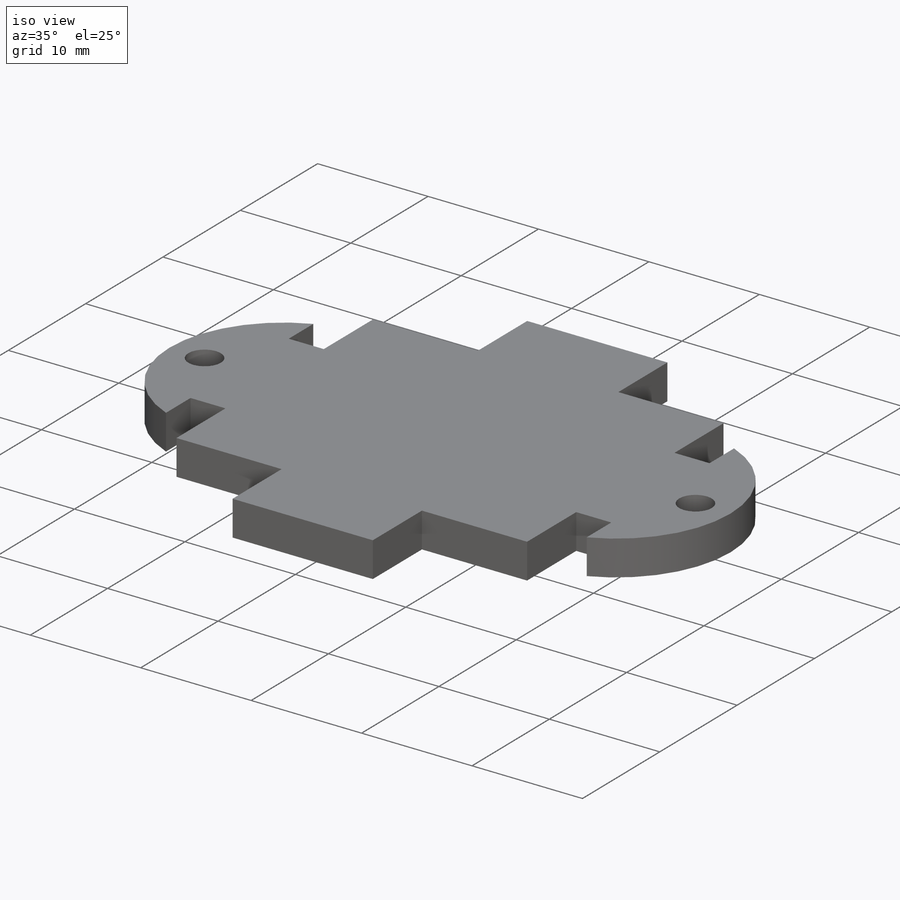
[diagram: iso view]
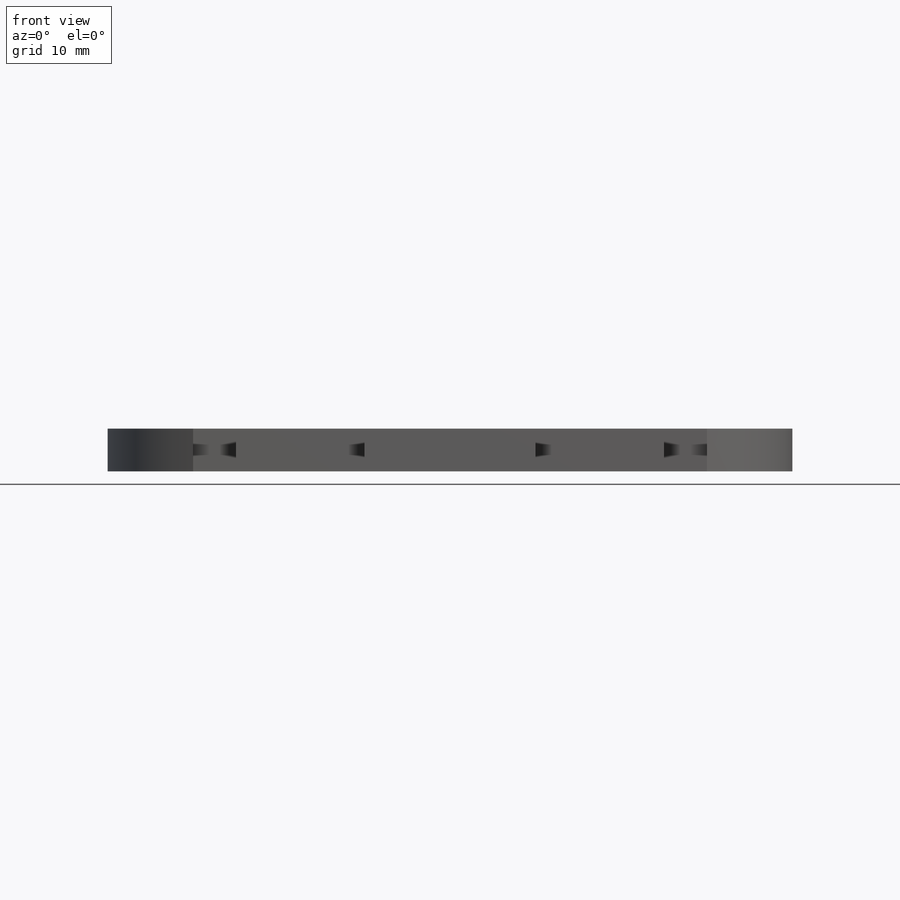
[diagram: front view]
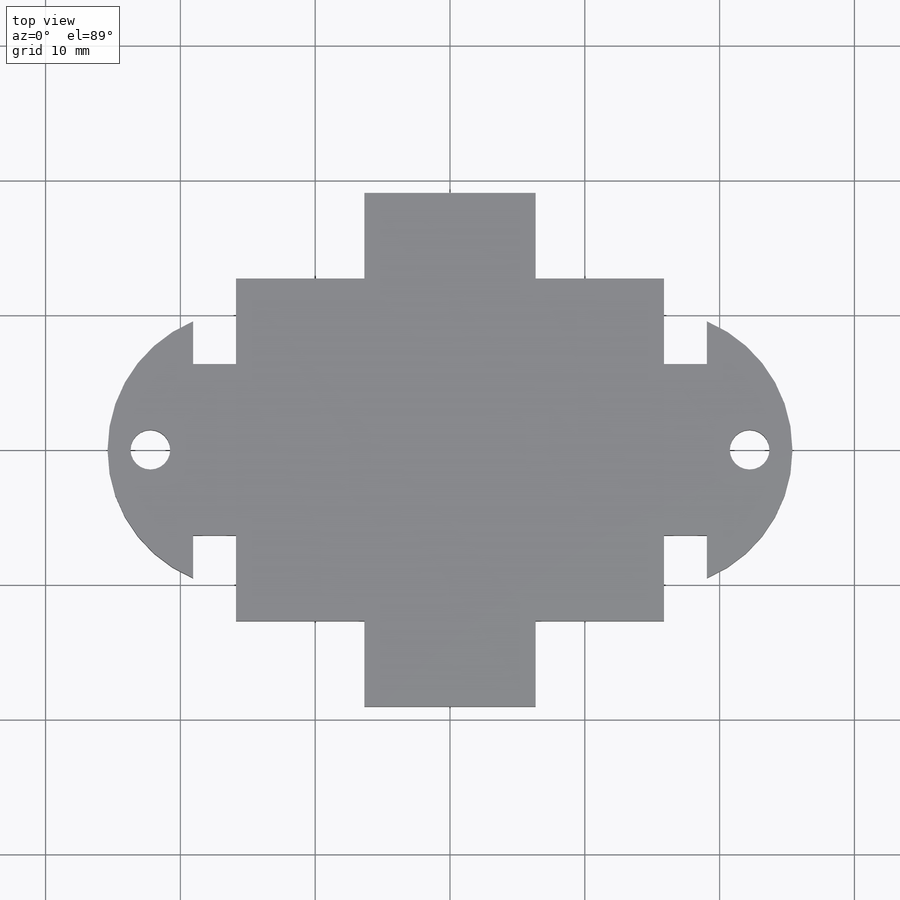
[diagram: top view]
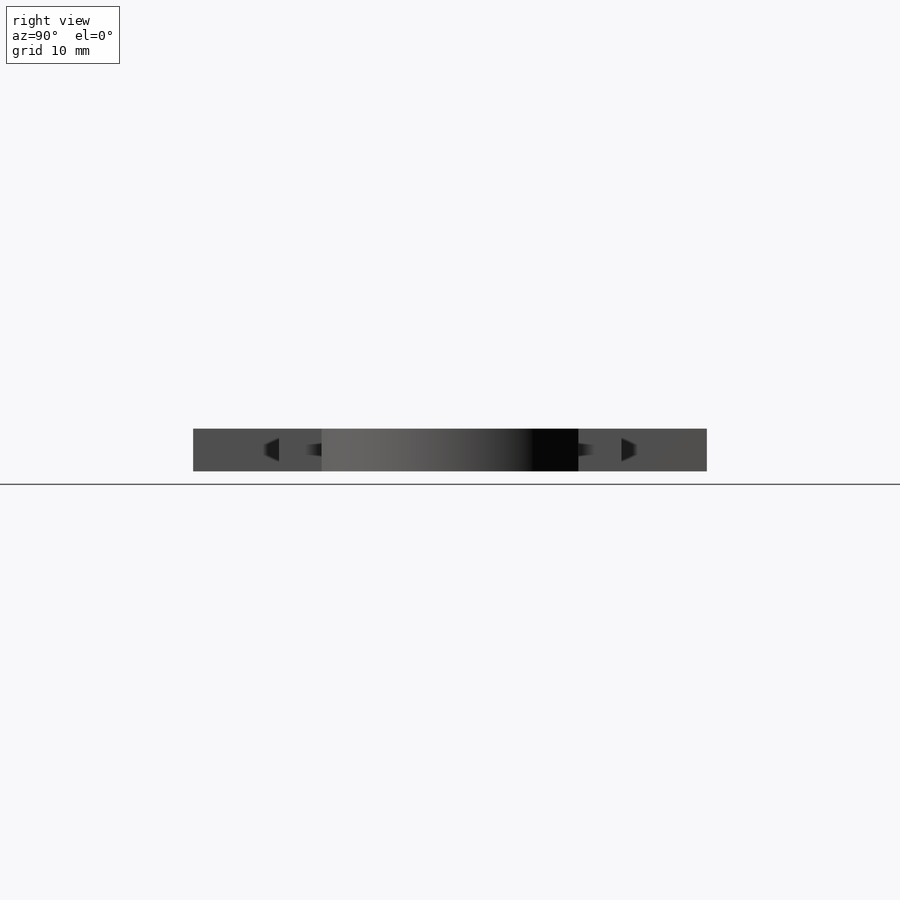
[diagram: right view]
SOLIDWORKS PART (.sldprt)
format: sldprt  version: not decoded by parser v0  size: 229,888 bytes
history: native  units: mm
features: sketch x5, material x1, extrude x1, hole x1, cut_extrude x1 + 1 further entry (+12 scaffold rows collapsed)
feature tree (22):
  scaffold x12  (default folders/planes/origin — collapsed)
  material  "Acrylic (Medium-high impact)"
  sketch  "Sketch1"  dims[c1.D3=6.35mm c1.D8=~10.31875mm c1.D9=~10.31875mm c1.D1=25.4mm c1.D2=31.75mm c2.D3=12.7mm c2.D4=3.175mm c2.D5=12.7mm c3.D4=3.175mm c3.D6=12.7mm c3.D7=6.35mm c3.D8=19.05mm]
  extrude  "Boss-Extrude1"  Depth=3.175mm
  hole  "#4 Clearance Hole1"  Diameter=2.9464mm Depth=6.35mm
  sketch  "Sketch3"  dims[D1=3.175mm]
  sketch  "Sketch2"  dims[hole-wizard template sketch: 50 standard entries collapsed; hole parameters above]
  sketch  "Sketch4"
  sketch  "Sketch5"  dims[D1=1.27mm]
  cut_extrude  "Cut-Extrude1"  Depth=2.54mm
  "Sketch-Pattern1"
decode coverage: 7 of 8 modeling features carry decoded parameters; 1 rows unclassified (native names shown)
note: ~ marks probable driven/reference dimensions
note: suppression state not decoded; provenance and decode notes live in map.json
